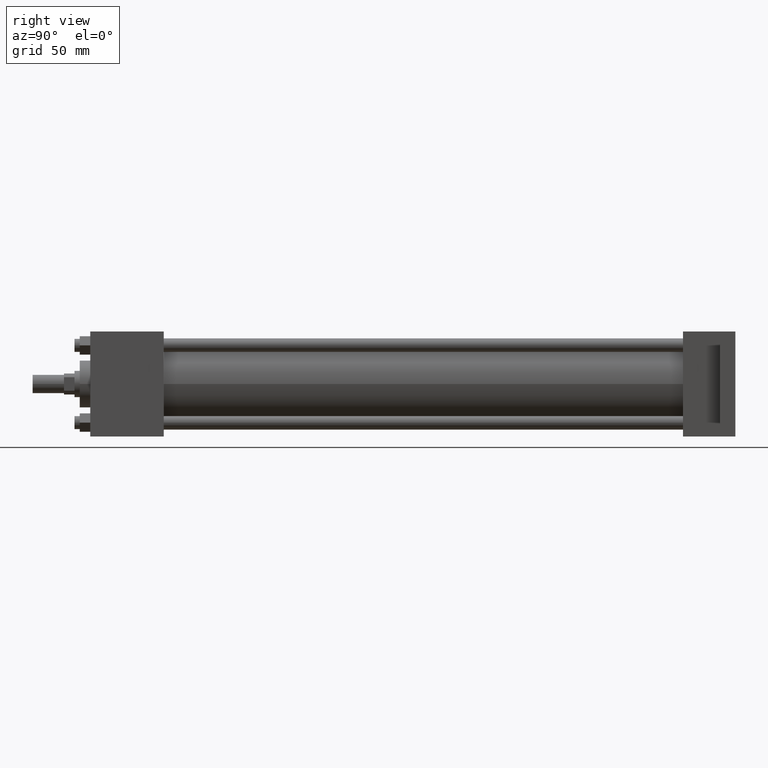
[diagram: clean part render]
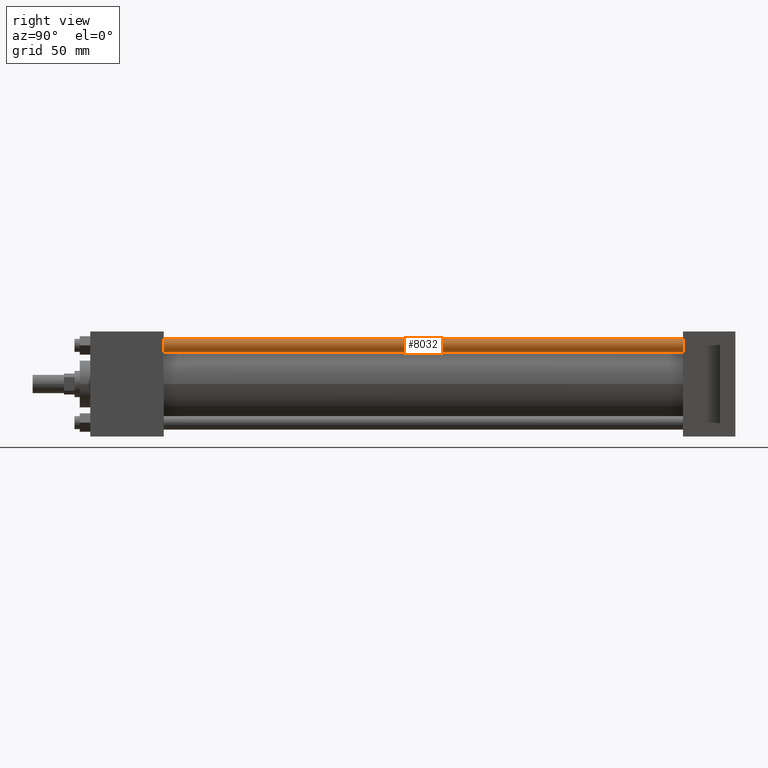
[diagram: same view with one face highlighted and labeled with its STEP entity id]
A machine part, right view. The second image highlights one B-rep face of the part: STEP entity #8032.
In plain terms, the highlighted cylindrical surface (bore or boss wall) has radius 3.9688 mm, axis along (0, 1, 0).
Its self-contained STEP definition (entity closure, byte-faithful):
#536=EDGE_CURVE('',#542,#542,#537,.T.);
#537=CIRCLE('',#538,3.968750000E+000);
#538=AXIS2_PLACEMENT_3D('',#539,#540,#541);
#539=CARTESIAN_POINT('',(2.336800000E+001,6.032500000E+001,2.336800000E+001));
#540=DIRECTION('',(0.0E+000,-1.0E+000,0.0E+000));
#541=DIRECTION('',(-1.0E+000,0.0E+000,0.0E+000));
#542=VERTEX_POINT('',#543);
#543=CARTESIAN_POINT('',(1.939925000E+001,6.032500000E+001,2.336800000E+001));
#2364=FACE_OUTER_BOUND('',#2366,.T.);
#2365=FACE_BOUND('',#2367,.T.);
#2366=EDGE_LOOP('',(#2368));
#2367=EDGE_LOOP('',(#2369));
#2368=ORIENTED_EDGE('',*,*,#536,.F.);
#2369=ORIENTED_EDGE('',*,*,#2416,.T.);
#2370=CYLINDRICAL_SURFACE('',#2371,3.968750000E+000);
#2371=AXIS2_PLACEMENT_3D('',#2372,#2373,#2374);
#2372=CARTESIAN_POINT('',(2.336800000E+001,5.080000000E+001,2.336800000E+001));
#2373=DIRECTION('',(0.0E+000,1.0E+000,0.0E+000));
#2374=DIRECTION('',(0.0E+000,0.0E+000,-1.0E+000));
#2416=EDGE_CURVE('',#2422,#2422,#2417,.T.);
#2417=CIRCLE('',#2418,3.968750000E+000);
#2418=AXIS2_PLACEMENT_3D('',#2419,#2420,#2421);
#2419=CARTESIAN_POINT('',(2.336800000E+001,3.746500000E+002,2.336800000E+001));
#2420=DIRECTION('',(0.0E+000,-1.0E+000,0.0E+000));
#2421=DIRECTION('',(-1.0E+000,0.0E+000,0.0E+000));
#2422=VERTEX_POINT('',#2423);
#2423=CARTESIAN_POINT('',(1.939925000E+001,3.746500000E+002,2.336800000E+001));
#8032=ADVANCED_FACE('',(#2364,#2365),#2370,.T.);